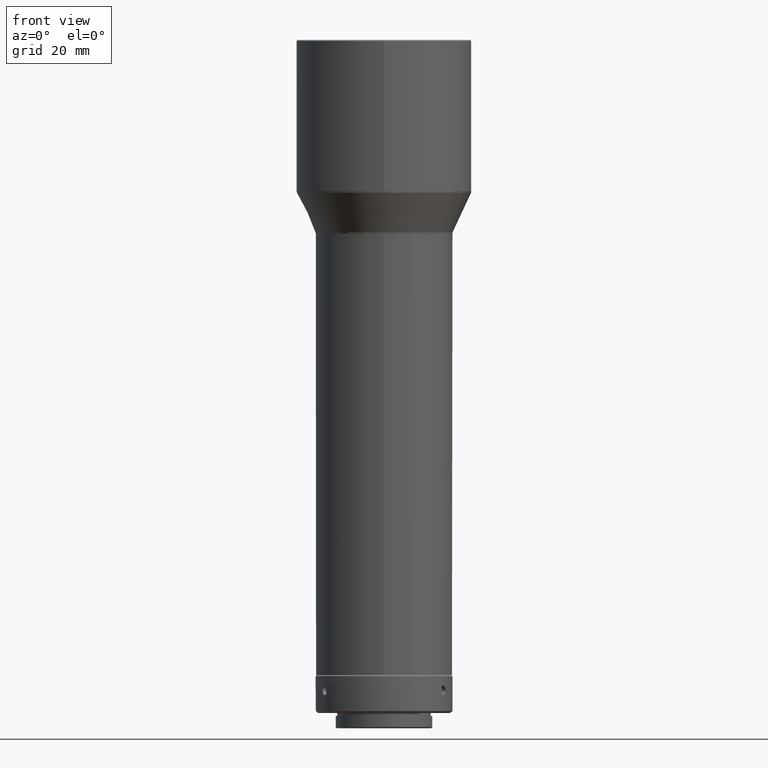
[diagram: clean part render]
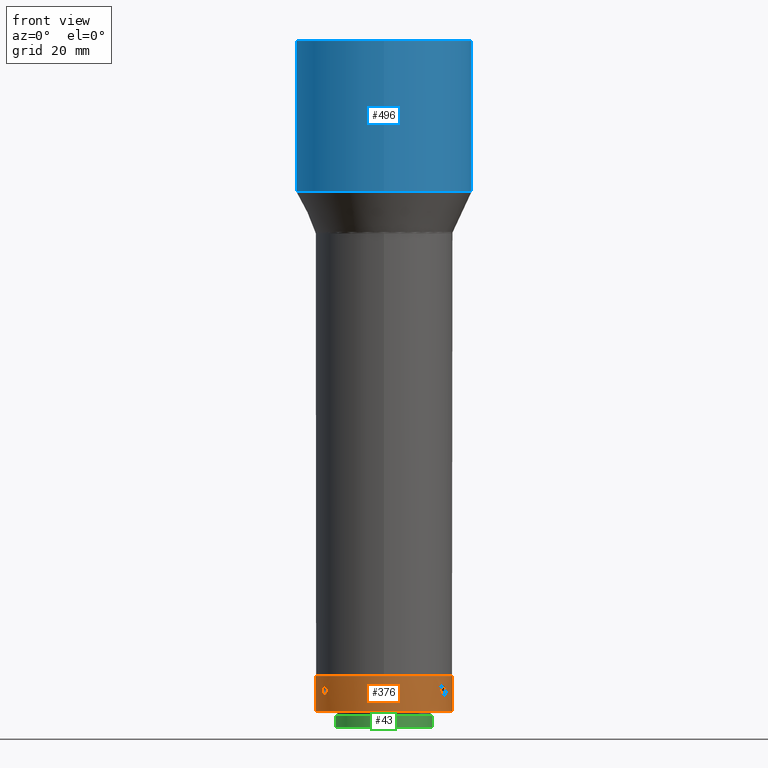
[diagram: same view with three faces highlighted in distinct colors, each labeled with its STEP entity id]
A machine part, front view with three faces highlighted in distinct colors.
Their STEP definitions:

[orange] entity #376 — the highlighted cylindrical surface (bore or boss wall) has radius 18 mm, axis along (0, 0, 1).
#4 = CARTESIAN_POINT ( 'NONE',  ( 15.26487564935874808, -9.539717018441056240, -902.9911161845229799 ) ) ;
#15 = DIRECTION ( 'NONE',  ( 0.000000000000000000, 0.000000000000000000, 1.000000000000000000 ) ) ;
#18 = CARTESIAN_POINT ( 'NONE',  ( 6.030200055689006983E-30, -1.272382910686673902E-30, -900.0834119999999530 ) ) ;
#19 = CARTESIAN_POINT ( 'NONE',  ( 15.89389229175798235, -8.450273022655030886, -902.9907363457097063 ) ) ;
#32 = CARTESIAN_POINT ( 'NONE',  ( 15.26509761156019884, -9.539377401184779615, -905.1760880156602980 ) ) ;
#41 = CARTESIAN_POINT ( 'NONE',  ( -15.67042028344148719, -8.858020202463205095, -902.8335249727660994 ) ) ;
#47 = CARTESIAN_POINT ( 'NONE',  ( -15.19139325230758253, -9.655839439901393817, -903.0823159321255389 ) ) ;
#49 = AXIS2_PLACEMENT_3D ( 'NONE', #18, #232, #166 ) ;
#52 = CARTESIAN_POINT ( 'NONE',  ( -15.42218430790377148, -9.283256999105457652, -905.3004273772534134 ) ) ;
#54 = CARTESIAN_POINT ( 'NONE',  ( -0.1622122895000129295, 18.00000780388930721, -902.8332996239674912 ) ) ;
#63 = CARTESIAN_POINT ( 'NONE',  ( 0.7665048592950624018, 17.98405222760584721, -905.0845086175249889 ) ) ;
#66 = EDGE_CURVE ( 'NONE', #759, #759, #594, .T. ) ;
#69 = CARTESIAN_POINT ( 'NONE',  ( 15.06517464280619834, -9.851590384043120707, -903.3147808769150515 ) ) ;
#74 = CARTESIAN_POINT ( 'NONE',  ( -16.06471677035730394, -8.120254879791547253, -904.8513321707624755 ) ) ;
#83 = CARTESIAN_POINT ( 'NONE',  ( 1.249999999999991118, 17.95654476785553655, -904.0834119999999530 ) ) ;
#97 = EDGE_LOOP ( 'NONE', ( #454 ) ) ;
#101 = CARTESIAN_POINT ( 'NONE',  ( 15.01397497146086124, -9.928973643487818634, -904.7138379346065449 ) ) ;
#104 = CARTESIAN_POINT ( 'NONE',  ( 15.67042018912277435, -8.858020365846082100, -905.3332990273639780 ) ) ;
#106 = CARTESIAN_POINT ( 'NONE',  ( -1.000012230497474341, 17.97258022027630631, -903.3154928980901559 ) ) ;
#109 = CARTESIAN_POINT ( 'NONE',  ( -15.42341458922628483, -9.281228838265834113, -902.8656271631305117 ) ) ;
#111 = EDGE_LOOP ( 'NONE', ( #327 ) ) ;
#116 = CARTESIAN_POINT ( 'NONE',  ( -15.26487600238791842, -9.539716451242952644, -905.1757081720306815 ) ) ;
#117 = CARTESIAN_POINT ( 'NONE',  ( 0.7685930773333922161, 17.98395353626940363, -903.0842425139829857 ) ) ;
#121 = CARTESIAN_POINT ( 'NONE',  ( -1.091986416381326874, 17.96695628302231995, -904.7134196652779110 ) ) ;
#126 = CARTESIAN_POINT ( 'NONE',  ( -1.217386932848438352, 17.95889559784534839, -903.7557887959092113 ) ) ;
#132 = FACE_BOUND ( 'NONE', #747, .T. ) ;
#142 = VERTEX_POINT ( 'NONE', #269 ) ;
#154 = CARTESIAN_POINT ( 'NONE',  ( 15.95789887597212697, -8.328212755427129466, -903.0823159321255389 ) ) ;
#158 = CARTESIAN_POINT ( 'NONE',  ( 16.17582379988434482, -7.895740902226664915, -904.2486132896939353 ) ) ;
#165 = EDGE_CURVE ( 'NONE', #707, #707, #187, .T. ) ;
#166 = DIRECTION ( 'NONE',  ( 1.000000000000000000, 0.000000000000000000, 0.000000000000000000 ) ) ;
#168 = CARTESIAN_POINT ( 'NONE',  ( 15.42341477952708395, -9.281228519509767239, -905.3011969096968414 ) ) ;
#181 = CARTESIAN_POINT ( 'NONE',  ( -14.94412316329297319, -10.03379964370063249, -904.4107128894950165 ) ) ;
#187 = B_SPLINE_CURVE_WITH_KNOTS ( 'NONE', 3,
 ( #535, #793, #480, #732, #768, #395, #789, #234, #41, #433, #109, #481, #47, #558, #375, #681, #309, #621, #181, #438, #818, #563, #116, #52, #252, #502, #525, #528, #709, #74, #474, #590, #520, #784 ),
 .UNSPECIFIED., .T., .F.,
 ( 4, 2, 2, 2, 2, 2, 2, 2, 2, 2, 2, 2, 2, 2, 2, 2, 4 ),
 ( 0.000000000000000000, 0.0004885519476059286669, 0.0009771038952118573338, 0.001465655842817786001, 0.001954207790423714668, 0.002442759738029643551, 0.002931311685635572001, 0.003419863633241500452, 0.003908415580847429335, 0.004396967528453358219, 0.004885519476059287103, 0.005374071423665215119, 0.005862623371271144003, 0.006351175318877072887, 0.006839727266483000903, 0.007328279214088929787, 0.007816831161694858671 ),
 .UNSPECIFIED. ) ;
#190 = DIRECTION ( 'NONE',  ( -0.000000000000000000, -0.000000000000000000, 1.000000000000000000 ) ) ;
#202 = CARTESIAN_POINT ( 'NONE',  ( 6.030200055689006983E-30, -1.272382910686673902E-30, -900.3834119999999075 ) ) ;
#217 = CARTESIAN_POINT ( 'NONE',  ( -17.99999999999999645, -1.272382910686673902E-30, -900.3834119999999075 ) ) ;
#218 = FACE_BOUND ( 'NONE', #97, .T. ) ;
#220 = DIRECTION ( 'NONE',  ( 1.000000000000000000, 0.000000000000000000, 0.000000000000000000 ) ) ;
#223 = CARTESIAN_POINT ( 'NONE',  ( 16.10573125108188108, -8.037996199706920919, -903.4529874048873808 ) ) ;
#224 = EDGE_CURVE ( 'NONE', #142, #142, #274, .T. ) ;
#229 = CARTESIAN_POINT ( 'NONE',  ( 16.17582406642459247, -7.895740356171736529, -903.9182152969526669 ) ) ;
#232 = DIRECTION ( 'NONE',  ( 0.000000000000000000, 0.000000000000000000, 1.000000000000000000 ) ) ;
#234 = CARTESIAN_POINT ( 'NONE',  ( -15.75062872817974124, -8.714374564439973270, -902.8663966990361587 ) ) ;
#250 = CARTESIAN_POINT ( 'NONE',  ( -1.091756721072177916, 17.96697050981530452, -903.4529874048878355 ) ) ;
#252 = CARTESIAN_POINT ( 'NONE',  ( -15.50648075862407005, -9.141971788833755497, -905.3332990273639780 ) ) ;
#253 = B_SPLINE_CURVE_WITH_KNOTS ( 'NONE', 3,
 ( #748, #489, #808, #757, #683, #117, #689, #743, #622, #54, #628, #608, #548, #106, #250, #126, #379, #680, #620, #121, #625, #374, #760, #566, #320, #815, #500, #444, #63, #385, #261, #317, #745, #570 ),
 .UNSPECIFIED., .T., .F.,
 ( 4, 2, 2, 2, 2, 2, 2, 2, 2, 2, 2, 2, 2, 2, 2, 2, 4 ),
 ( 0.000000000000000000, 0.0004885519476059285585, 0.0009771038952118571170, 0.001465655842817785350, 0.001954207790423713367, 0.002442759738029640949, 0.002931311685635568966, 0.003419863633241496115, 0.003908415580847424131, 0.004396967528453352148, 0.004885519476059279297, 0.005374071423665207313, 0.005862623371271134462, 0.006351175318877062478, 0.006839727266482989627, 0.007328279214088918511, 0.007816831161694846528 ),
 .UNSPECIFIED. ) ;
#261 = CARTESIAN_POINT ( 'NONE',  ( 1.091755923036134002, 17.96697055881277194, -904.7138379346062038 ) ) ;
#267 = CARTESIAN_POINT ( 'NONE',  ( 15.66957017123612594, -8.859523938431872025, -902.8332996239673776 ) ) ;
#269 = CARTESIAN_POINT ( 'NONE',  ( 18.00000000000000355, -1.272382910686673902E-30, -909.5834119999999530 ) ) ;
#271 = CARTESIAN_POINT ( 'NONE',  ( 6.030200055689006983E-30, -1.272382910686673902E-30, -909.5834119999999530 ) ) ;
#273 = CARTESIAN_POINT ( 'NONE',  ( -16.17582393315550959, -7.895740629197078420, -904.0834120000001803 ) ) ;
#274 = CIRCLE ( 'NONE', #397, 18.00000000000000355 ) ;
#283 = CARTESIAN_POINT ( 'NONE',  ( 16.06471715756161345, -8.120254114432439607, -903.3154928980899285 ) ) ;
#290 = CARTESIAN_POINT ( 'NONE',  ( 14.92582393315539413, -10.06080413865837997, -904.0834120000000667 ) ) ;
#309 = CARTESIAN_POINT ( 'NONE',  ( -14.92582376334306105, -10.06080439058547071, -903.9182152969525532 ) ) ;
#317 = CARTESIAN_POINT ( 'NONE',  ( 1.217386422865418538, 17.95889563292107738, -904.4110370172559215 ) ) ;
#320 = CARTESIAN_POINT ( 'NONE',  ( -0.1639394304986134809, 17.99999215467991931, -905.3332990273638643 ) ) ;
#323 = EDGE_CURVE ( 'NONE', #470, #470, #253, .T. ) ;
#326 = CARTESIAN_POINT ( 'NONE',  ( 15.19026408422143248, -9.657597898278536874, -903.0842425139830993 ) ) ;
#327 = ORIENTED_EDGE ( 'NONE', *, *, #224, .T. ) ;
#329 = CARTESIAN_POINT ( 'NONE',  ( 15.50648066428969685, -9.141971952207601504, -902.8335249727663268 ) ) ;
#374 = CARTESIAN_POINT ( 'NONE',  ( -0.7685923121488431597, 17.98395356874551609, -905.0825820424839776 ) ) ;
#375 = CARTESIAN_POINT ( 'NONE',  ( -15.01397453000996585, -9.928974310108319656, -903.4529874048873808 ) ) ;
#376 = ADVANCED_FACE ( 'NONE', ( #585, #778, #132, #634, #218 ), #736, .T. ) ;
#379 = CARTESIAN_POINT ( 'NONE',  ( -1.250000303081700403, 17.95654474675726320, -903.9182152969530080 ) ) ;
#385 = CARTESIAN_POINT ( 'NONE',  ( 1.000011374074570636, 17.97258026762709804, -904.8513321707624755 ) ) ;
#391 = CARTESIAN_POINT ( 'NONE',  ( 15.01384693159024231, -9.929166768100163409, -903.4534056262730246 ) ) ;
#395 = CARTESIAN_POINT ( 'NONE',  ( -15.95885716155516576, -8.326355637990779712, -903.0842425139829857 ) ) ;
#397 = AXIS2_PLACEMENT_3D ( 'NONE', #271, #15, #220 ) ;
#412 = CARTESIAN_POINT ( 'NONE',  ( 16.16155327807074116, -7.925159788840832498, -903.7557887959092113 ) ) ;
#413 = EDGE_LOOP ( 'NONE', ( #485 ) ) ;
#417 = CARTESIAN_POINT ( 'NONE',  ( 15.89407479287072533, -8.449912178065829949, -905.1757081720304541 ) ) ;
#421 = CARTESIAN_POINT ( 'NONE',  ( 15.06470539628273642, -9.852325387835485060, -904.8513321707628165 ) ) ;
#433 = CARTESIAN_POINT ( 'NONE',  ( -15.50735788173646945, -9.140483865457362356, -902.8332996239672639 ) ) ;
#438 = CARTESIAN_POINT ( 'NONE',  ( -15.01384736159115363, -9.929166118684834785, -904.7134196652777973 ) ) ;
#444 = CARTESIAN_POINT ( 'NONE',  ( 0.6287943599332023181, 17.98965102345268008, -905.1760880156604117 ) ) ;
#453 = DIRECTION ( 'NONE',  ( -1.000000000000000000, 0.000000000000000000, 0.000000000000000000 ) ) ;
#454 = ORIENTED_EDGE ( 'NONE', *, *, #165, .T. ) ;
#467 = VERTEX_POINT ( 'NONE', #217 ) ;
#470 = VERTEX_POINT ( 'NONE', #83 ) ;
#471 = AXIS2_PLACEMENT_3D ( 'NONE', #202, #190, #453 ) ;
#474 = CARTESIAN_POINT ( 'NONE',  ( -16.10573089449705719, -8.037996915324866265, -904.7138379346065449 ) ) ;
#480 = CARTESIAN_POINT ( 'NONE',  ( -16.16158720264612825, -7.925089998557205639, -903.7561129706283509 ) ) ;
#481 = CARTESIAN_POINT ( 'NONE',  ( -15.26509725241261251, -9.539377978348502651, -902.9907363457094789 ) ) ;
#485 = ORIENTED_EDGE ( 'NONE', *, *, #714, .F. ) ;
#489 = CARTESIAN_POINT ( 'NONE',  ( 1.249999999999991340, 17.95654476785553655, -903.9182127607351731 ) ) ;
#492 = CARTESIAN_POINT ( 'NONE',  ( 14.94416663059034001, -10.03373538488430405, -904.4110370172555804 ) ) ;
#500 = CARTESIAN_POINT ( 'NONE',  ( 0.3260722864606752092, 17.99768327192969863, -905.3011969096970688 ) ) ;
#502 = CARTESIAN_POINT ( 'NONE',  ( -15.66957007690071535, -8.859524101807538798, -905.3335243759023570 ) ) ;
#518 = CARTESIAN_POINT ( 'NONE',  ( 15.74948724688811730, -8.716454428236506402, -902.8656271631302843 ) ) ;
#520 = CARTESIAN_POINT ( 'NONE',  ( -16.17582393315549893, -7.895740629197107729, -904.2486112392655286 ) ) ;
#525 = CARTESIAN_POINT ( 'NONE',  ( -15.74948706598767245, -8.716454752419856788, -905.3011969096970688 ) ) ;
#528 = CARTESIAN_POINT ( 'NONE',  ( -15.89389197149334088, -8.450273622267832963, -905.1760880156606390 ) ) ;
#535 = CARTESIAN_POINT ( 'NONE',  ( -16.17582393315550959, -7.895740629197078420, -904.0834120000000667 ) ) ;
#539 = CARTESIAN_POINT ( 'NONE',  ( 15.75062854503694965, -8.714374892937593486, -905.3004273772536408 ) ) ;
#548 = CARTESIAN_POINT ( 'NONE',  ( -0.7665056236648892796, 17.98405219532855170, -903.0823159321259936 ) ) ;
#558 = CARTESIAN_POINT ( 'NONE',  ( -15.06470492706443842, -9.852326105843829396, -903.3154928980898148 ) ) ;
#563 = CARTESIAN_POINT ( 'NONE',  ( -15.19026449493897779, -9.657597251847127140, -905.0825820424837502 ) ) ;
#566 = CARTESIAN_POINT ( 'NONE',  ( -0.3284442371330717481, 17.99763189204312397, -905.3004273772536408 ) ) ;
#570 = CARTESIAN_POINT ( 'NONE',  ( 1.249999999999991118, 17.95654476785553300, -904.0834120000001803 ) ) ;
#585 = FACE_OUTER_BOUND ( 'NONE', #413, .T. ) ;
#590 = CARTESIAN_POINT ( 'NONE',  ( -16.16155305345584026, -7.925160248036699606, -904.4110370172561488 ) ) ;
#593 = CARTESIAN_POINT ( 'NONE',  ( 15.50735797605623567, -9.140483702072653927, -905.3335243759026980 ) ) ;
#594 = B_SPLINE_CURVE_WITH_KNOTS ( 'NONE', 3,
 ( #646, #783, #721, #391, #69, #326, #4, #638, #329, #267, #518, #19, #154, #283, #223, #412, #229, #158, #802, #657, #671, #606, #417, #539, #104, #593, #168, #32, #610, #421, #101, #492, #741, #290 ),
 .UNSPECIFIED., .T., .F.,
 ( 4, 2, 2, 2, 2, 2, 2, 2, 2, 2, 2, 2, 2, 2, 2, 2, 4 ),
 ( 0.000000000000000000, 0.0004885519476059295343, 0.0009771038952118590686, 0.001465655842817788603, 0.001954207790423718137, 0.002442759738029644852, 0.002931311685635572001, 0.003419863633241498717, 0.003908415580847425866, 0.004396967528453353015, 0.004885519476059279297, 0.005374071423665207313, 0.005862623371271133595, 0.006351175318877060744, 0.006839727266482987025, 0.007328279214088915042, 0.007816831161694841323 ),
 .UNSPECIFIED. ) ;
#606 = CARTESIAN_POINT ( 'NONE',  ( 15.95885680708792798, -8.326356316898312571, -905.0825820424843187 ) ) ;
#608 = CARTESIAN_POINT ( 'NONE',  ( -0.6287950393457089060, 17.98965100100359393, -902.9907363457098199 ) ) ;
#610 = CARTESIAN_POINT ( 'NONE',  ( 15.19139366244528055, -9.655838794076609943, -905.0845086175245342 ) ) ;
#620 = CARTESIAN_POINT ( 'NONE',  ( -1.217463806281648742, 17.95889011854548656, -904.4107128894951302 ) ) ;
#621 = CARTESIAN_POINT ( 'NONE',  ( -14.92582410297037576, -10.06080388672738124, -904.2486132896940489 ) ) ;
#622 = CARTESIAN_POINT ( 'NONE',  ( 0.1639396191514407852, 17.99999215467088831, -902.8335249727664404 ) ) ;
#625 = CARTESIAN_POINT ( 'NONE',  ( -0.9991393837938830069, 17.97261919133772778, -904.8520441668027843 ) ) ;
#628 = CARTESIAN_POINT ( 'NONE',  ( -0.3260726576621940653, 17.99768326650239914, -902.8656271631306254 ) ) ;
#629 = CARTESIAN_POINT ( 'NONE',  ( 14.92582393315539768, -10.06080413865837997, -904.0834120000001803 ) ) ;
#634 = FACE_BOUND ( 'NONE', #729, .T. ) ;
#638 = CARTESIAN_POINT ( 'NONE',  ( 15.42218411498788377, -9.283257321960583397, -902.8663966990361587 ) ) ;
#646 = CARTESIAN_POINT ( 'NONE',  ( 14.92582393315539413, -10.06080413865837997, -904.0834120000000667 ) ) ;
#657 = CARTESIAN_POINT ( 'NONE',  ( 16.10583377797241766, -8.037790164337417664, -904.7134196652774563 ) ) ;
#665 = ORIENTED_EDGE ( 'NONE', *, *, #66, .T. ) ;
#671 = CARTESIAN_POINT ( 'NONE',  ( 16.06431448413917806, -8.121029507381743784, -904.8520441668025569 ) ) ;
#680 = CARTESIAN_POINT ( 'NONE',  ( -1.249999696914077418, 17.95654478895411188, -904.2486132896942763 ) ) ;
#681 = CARTESIAN_POINT ( 'NONE',  ( -14.94416634522249510, -10.03373580900444750, -903.7557887959086429 ) ) ;
#683 = CARTESIAN_POINT ( 'NONE',  ( 0.9991402188564660891, 17.97261914514090009, -903.3147808769149378 ) ) ;
#689 = CARTESIAN_POINT ( 'NONE',  ( 0.6291994582050507434, 17.98962860717569612, -902.9911161845234346 ) ) ;
#707 = VERTEX_POINT ( 'NONE', #273 ) ;
#709 = CARTESIAN_POINT ( 'NONE',  ( -15.95789852174031864, -8.328213433529164433, -905.0845086175245342 ) ) ;
#714 = EDGE_CURVE ( 'NONE', #467, #467, #717, .T. ) ;
#717 = CIRCLE ( 'NONE', #471, 17.99999999999999645 ) ;
#721 = CARTESIAN_POINT ( 'NONE',  ( 14.94412286735163242, -10.03380008369035714, -903.7561129706283509 ) ) ;
#729 = EDGE_LOOP ( 'NONE', ( #665 ) ) ;
#732 = CARTESIAN_POINT ( 'NONE',  ( -16.10583412538212045, -8.037789467238035002, -903.4534056262727972 ) ) ;
#736 = CYLINDRICAL_SURFACE ( 'NONE', #49, 18.00000000000000355 ) ;
#741 = CARTESIAN_POINT ( 'NONE',  ( 14.92582393315541189, -10.06080413865835688, -904.2486112392654150 ) ) ;
#743 = CARTESIAN_POINT ( 'NONE',  ( 0.3284446131915322309, 17.99763188640063660, -902.8663966990362724 ) ) ;
#745 = CARTESIAN_POINT ( 'NONE',  ( 1.249999999999990896, 17.95654476785553300, -904.2486112392653013 ) ) ;
#747 = EDGE_LOOP ( 'NONE', ( #812 ) ) ;
#748 = CARTESIAN_POINT ( 'NONE',  ( 1.249999999999991118, 17.95654476785553300, -904.0834120000001803 ) ) ;
#757 = CARTESIAN_POINT ( 'NONE',  ( 1.091987193791646771, 17.96695623533829078, -903.4534056262730246 ) ) ;
#759 = VERTEX_POINT ( 'NONE', #629 ) ;
#760 = CARTESIAN_POINT ( 'NONE',  ( -0.6291987904827301969, 17.98962862930886075, -905.1757081720309088 ) ) ;
#768 = CARTESIAN_POINT ( 'NONE',  ( -16.06431486166297518, -8.121028761097695892, -903.3147808769151652 ) ) ;
#778 = FACE_OUTER_BOUND ( 'NONE', #111, .T. ) ;
#783 = CARTESIAN_POINT ( 'NONE',  ( 14.92582393315537814, -10.06080413865839951, -903.9182127607348320 ) ) ;
#784 = CARTESIAN_POINT ( 'NONE',  ( -16.17582393315550959, -7.895740629197078420, -904.0834120000000667 ) ) ;
#789 = CARTESIAN_POINT ( 'NONE',  ( -15.89407510756410780, -8.449911588734558165, -902.9911161845226388 ) ) ;
#793 = CARTESIAN_POINT ( 'NONE',  ( -16.17582393315551670, -7.895740629197049110, -903.9182127607346047 ) ) ;
#802 = CARTESIAN_POINT ( 'NONE',  ( 16.16158696957451824, -7.925090474844783905, -904.4107128894949028 ) ) ;
#808 = CARTESIAN_POINT ( 'NONE',  ( 1.217464335294312638, 17.95889008224766314, -903.7561129706282372 ) ) ;
#812 = ORIENTED_EDGE ( 'NONE', *, *, #323, .T. ) ;
#815 = CARTESIAN_POINT ( 'NONE',  ( 0.1622121008445734647, 18.00000780388025845, -905.3335243759023570 ) ) ;
#818 = CARTESIAN_POINT ( 'NONE',  ( -15.06517510034525209, -9.851589683955904064, -904.8520441668025569 ) ) ;

[blue] entity #496 — the highlighted cylindrical surface (bore or boss wall) has radius 23 mm, axis along (-0, -0, 1).
#17 = CARTESIAN_POINT ( 'NONE',  ( -1.181967344874662072E-14, -23.00000000000000711, -733.2999999999999545 ) ) ;
#50 = DIRECTION ( 'NONE',  ( 4.208976393280964279E-22, 5.550944505959339029E-17, -1.000000000000000000 ) ) ;
#110 = CIRCLE ( 'NONE', #699, 23.00000000000000000 ) ;
#123 = DIRECTION ( 'NONE',  ( -4.208976393280964279E-22, -5.550944505959339029E-17, 1.000000000000000000 ) ) ;
#137 = EDGE_CURVE ( 'NONE', #331, #331, #110, .T. ) ;
#172 = AXIS2_PLACEMENT_3D ( 'NONE', #691, #123, #383 ) ;
#192 = EDGE_LOOP ( 'NONE', ( #803 ) ) ;
#193 = FACE_OUTER_BOUND ( 'NONE', #632, .T. ) ;
#231 = ORIENTED_EDGE ( 'NONE', *, *, #137, .F. ) ;
#319 = CIRCLE ( 'NONE', #430, 23.00000000000000000 ) ;
#331 = VERTEX_POINT ( 'NONE', #710 ) ;
#342 = DIRECTION ( 'NONE',  ( 4.208976393280964279E-22, 5.550944505959339029E-17, -1.000000000000000000 ) ) ;
#383 = DIRECTION ( 'NONE',  ( 0.000000000000000000, -1.000000000000000000, 0.000000000000000000 ) ) ;
#408 = DIRECTION ( 'NONE',  ( -1.000000000000000000, 0.000000000000000000, 0.000000000000000000 ) ) ;
#428 = CARTESIAN_POINT ( 'NONE',  ( -1.181965683242110152E-14, -6.082444461786748131E-15, -772.7783053373569828 ) ) ;
#430 = AXIS2_PLACEMENT_3D ( 'NONE', #613, #50, #825 ) ;
#473 = EDGE_CURVE ( 'NONE', #526, #526, #319, .T. ) ;
#496 = ADVANCED_FACE ( 'NONE', ( #498, #193 ), #564, .T. ) ;
#498 = FACE_OUTER_BOUND ( 'NONE', #192, .T. ) ;
#526 = VERTEX_POINT ( 'NONE', #17 ) ;
#564 = CYLINDRICAL_SURFACE ( 'NONE', #172, 23.00000000000000000 ) ;
#613 = CARTESIAN_POINT ( 'NONE',  ( -1.181967344874662072E-14, -8.273863282956648413E-15, -733.2999999999999545 ) ) ;
#632 = EDGE_LOOP ( 'NONE', ( #231 ) ) ;
#691 = CARTESIAN_POINT ( 'NONE',  ( -1.181967357501591288E-14, -8.290516116474524186E-15, -733.0000000000000000 ) ) ;
#699 = AXIS2_PLACEMENT_3D ( 'NONE', #428, #342, #408 ) ;
#710 = CARTESIAN_POINT ( 'NONE',  ( -23.00000000000001066, -6.082444461786748131E-15, -772.7783053373569828 ) ) ;
#803 = ORIENTED_EDGE ( 'NONE', *, *, #473, .T. ) ;
#825 = DIRECTION ( 'NONE',  ( 0.000000000000000000, -1.000000000000000000, 0.000000000000000000 ) ) ;

[green] entity #43 — the highlighted cylindrical surface (bore or boss wall) has radius 12.7 mm, axis along (0, 0, 1).
#43 = ADVANCED_FACE ( 'NONE', ( #204, #711 ), #468, .T. ) ;
#62 = VERTEX_POINT ( 'NONE', #316 ) ;
#112 = EDGE_CURVE ( 'NONE', #62, #62, #550, .T. ) ;
#122 = ORIENTED_EDGE ( 'NONE', *, *, #205, .T. ) ;
#144 = DIRECTION ( 'NONE',  ( 0.000000000000000000, 0.000000000000000000, 1.000000000000000000 ) ) ;
#153 = AXIS2_PLACEMENT_3D ( 'NONE', #723, #330, #648 ) ;
#171 = DIRECTION ( 'NONE',  ( 0.000000000000000000, 0.000000000000000000, 1.000000000000000000 ) ) ;
#204 = FACE_OUTER_BOUND ( 'NONE', #365, .T. ) ;
#205 = EDGE_CURVE ( 'NONE', #637, #637, #522, .T. ) ;
#286 = AXIS2_PLACEMENT_3D ( 'NONE', #487, #171, #788 ) ;
#316 = CARTESIAN_POINT ( 'NONE',  ( 12.69999999999999751, -1.272382910686673902E-30, -913.7834119999999984 ) ) ;
#330 = DIRECTION ( 'NONE',  ( -0.000000000000000000, -0.000000000000000000, -1.000000000000000000 ) ) ;
#336 = CARTESIAN_POINT ( 'NONE',  ( 12.69999999999999751, -1.272382910686673902E-30, -910.8834120000000212 ) ) ;
#352 = AXIS2_PLACEMENT_3D ( 'NONE', #576, #144, #715 ) ;
#365 = EDGE_LOOP ( 'NONE', ( #122 ) ) ;
#370 = ORIENTED_EDGE ( 'NONE', *, *, #112, .T. ) ;
#468 = CYLINDRICAL_SURFACE ( 'NONE', #352, 12.69999999999999751 ) ;
#487 = CARTESIAN_POINT ( 'NONE',  ( 6.030200055689006983E-30, -1.272382910686673902E-30, -913.7834119999999984 ) ) ;
#522 = CIRCLE ( 'NONE', #153, 12.69999999999999751 ) ;
#550 = CIRCLE ( 'NONE', #286, 12.69999999999999751 ) ;
#576 = CARTESIAN_POINT ( 'NONE',  ( 6.030200055689006983E-30, -1.272382910686673902E-30, -900.0834119999999530 ) ) ;
#577 = EDGE_LOOP ( 'NONE', ( #370 ) ) ;
#637 = VERTEX_POINT ( 'NONE', #336 ) ;
#648 = DIRECTION ( 'NONE',  ( 1.000000000000000000, 0.000000000000000000, 0.000000000000000000 ) ) ;
#711 = FACE_OUTER_BOUND ( 'NONE', #577, .T. ) ;
#715 = DIRECTION ( 'NONE',  ( 1.000000000000000000, 0.000000000000000000, 0.000000000000000000 ) ) ;
#723 = CARTESIAN_POINT ( 'NONE',  ( 6.030200055689006983E-30, -1.272382910686673902E-30, -910.8834120000000212 ) ) ;
#788 = DIRECTION ( 'NONE',  ( 1.000000000000000000, 0.000000000000000000, 0.000000000000000000 ) ) ;